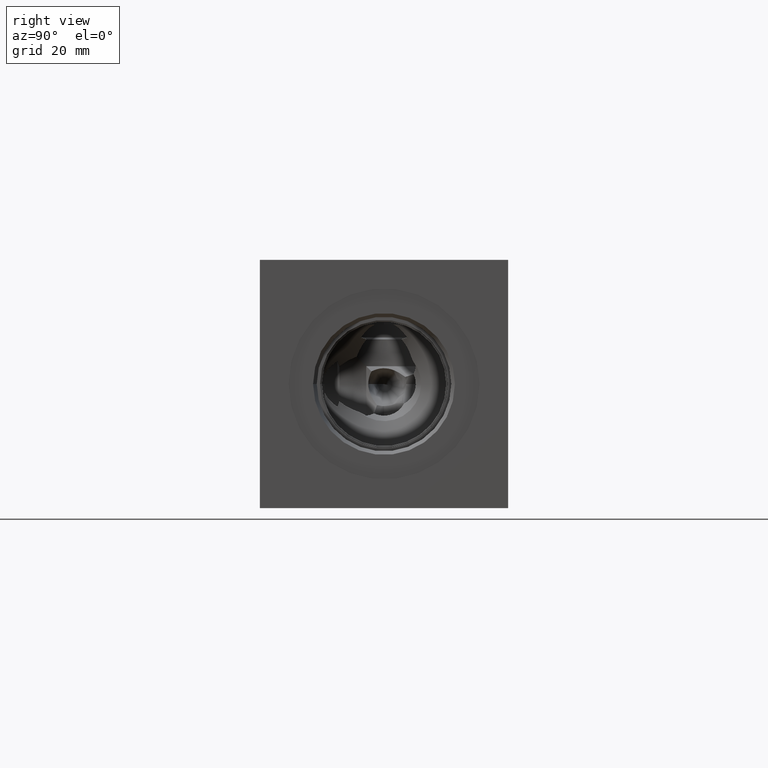
[diagram: clean part render]
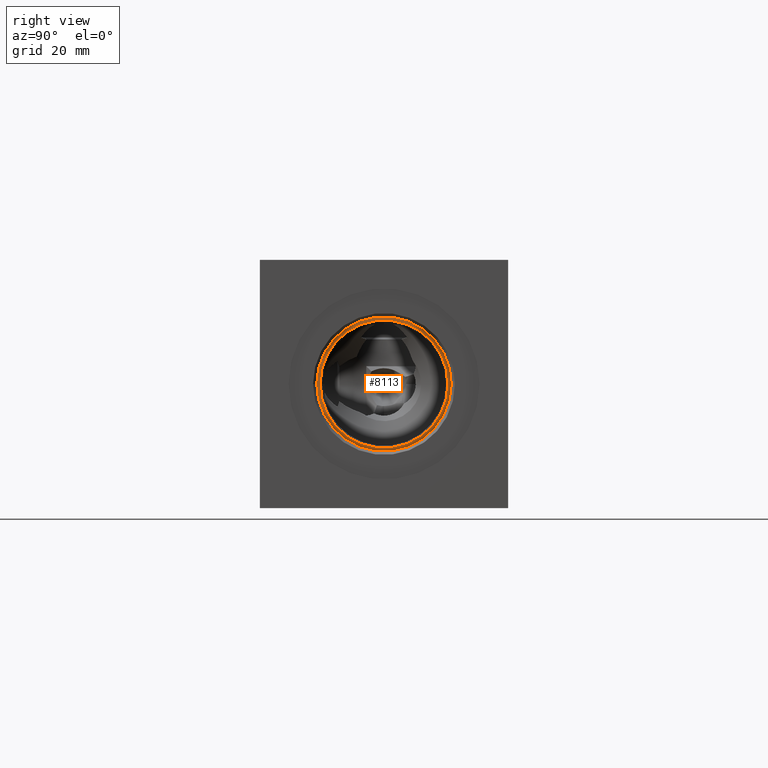
[diagram: same view with one face highlighted and labeled with its STEP entity id]
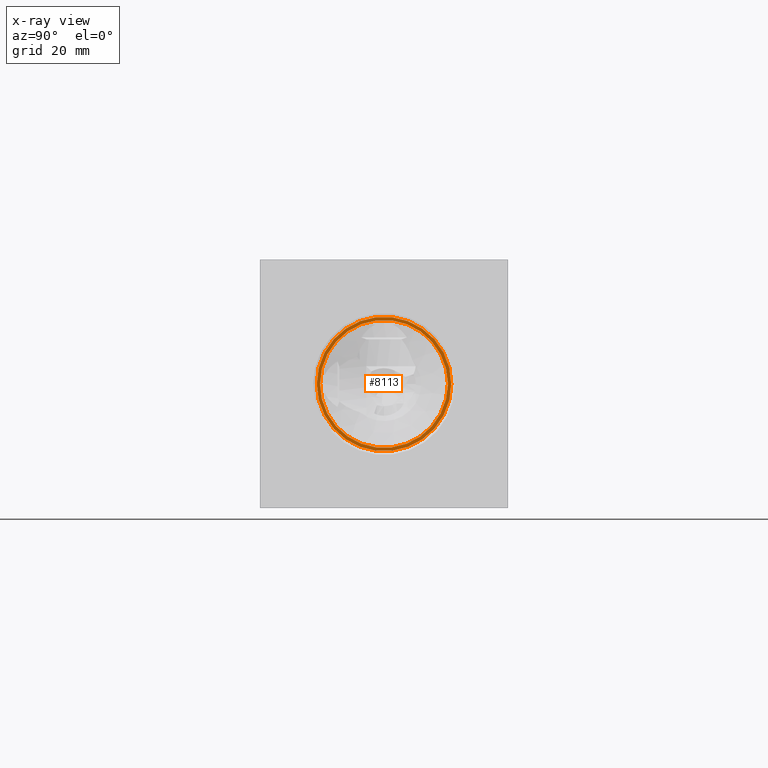
[diagram: x-ray of the same camera — body ghosted, the highlighted face saturated]
A machine part, right view. The second image highlights one B-rep face of the part: STEP entity #8113.
The next image is the same camera in x-ray: the body ghosted, the highlighted face saturated — about 0% of this face is hidden behind the body in this view.
In plain terms, the highlighted planar face has unit normal (1, 0, 0).
Its self-contained STEP definition (entity closure, byte-faithful):
#217=CIRCLE('',#8545,20.6375);
#218=CIRCLE('',#8546,20.6375);
#219=CIRCLE('',#8547,19.6088);
#281=FACE_BOUND('',#1528,.T.);
#1078=FACE_OUTER_BOUND('',#1527,.T.);
#1527=EDGE_LOOP('',(#7062,#7063));
#1528=EDGE_LOOP('',(#7064));
#3722=VERTEX_POINT('',#14288);
#3723=VERTEX_POINT('',#14289);
#3724=VERTEX_POINT('',#14292);
#4851=EDGE_CURVE('',#3722,#3723,#217,.T.);
#4852=EDGE_CURVE('',#3723,#3722,#218,.T.);
#4853=EDGE_CURVE('',#3724,#3724,#219,.T.);
#7062=ORIENTED_EDGE('',*,*,#4851,.T.);
#7063=ORIENTED_EDGE('',*,*,#4852,.T.);
#7064=ORIENTED_EDGE('',*,*,#4853,.F.);
#7405=PLANE('',#8544);
#8113=ADVANCED_FACE('',(#1078,#281),#7405,.T.);
#8544=AXIS2_PLACEMENT_3D('',#14287,#10079,#10080);
#8545=AXIS2_PLACEMENT_3D('',#14290,#10081,#10082);
#8546=AXIS2_PLACEMENT_3D('',#14291,#10083,#10084);
#8547=AXIS2_PLACEMENT_3D('',#14293,#10085,#10086);
#10079=DIRECTION('center_axis',(1.,0.,0.));
#10080=DIRECTION('ref_axis',(0.,1.,0.));
#10081=DIRECTION('center_axis',(1.,0.,0.));
#10082=DIRECTION('ref_axis',(0.,1.,0.));
#10083=DIRECTION('center_axis',(1.,0.,0.));
#10084=DIRECTION('ref_axis',(0.,1.,0.));
#10085=DIRECTION('center_axis',(1.,0.,0.));
#10086=DIRECTION('ref_axis',(0.,1.,0.));
#14287=CARTESIAN_POINT('Origin',(177.0126,38.1,38.1));
#14288=CARTESIAN_POINT('',(177.0126,58.7375,38.1));
#14289=CARTESIAN_POINT('',(177.0126,17.4625,38.1));
#14290=CARTESIAN_POINT('Origin',(177.0126,38.1,38.1));
#14291=CARTESIAN_POINT('Origin',(177.0126,38.1,38.1));
#14292=CARTESIAN_POINT('',(177.0126,18.4912,38.1));
#14293=CARTESIAN_POINT('Origin',(177.0126,38.1,38.1));